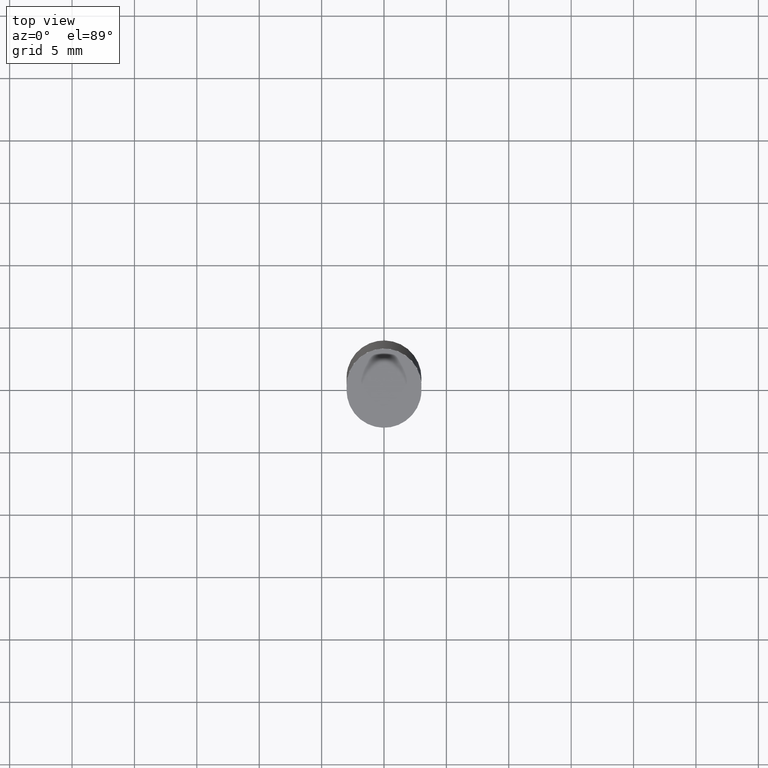
[diagram: clean part render]
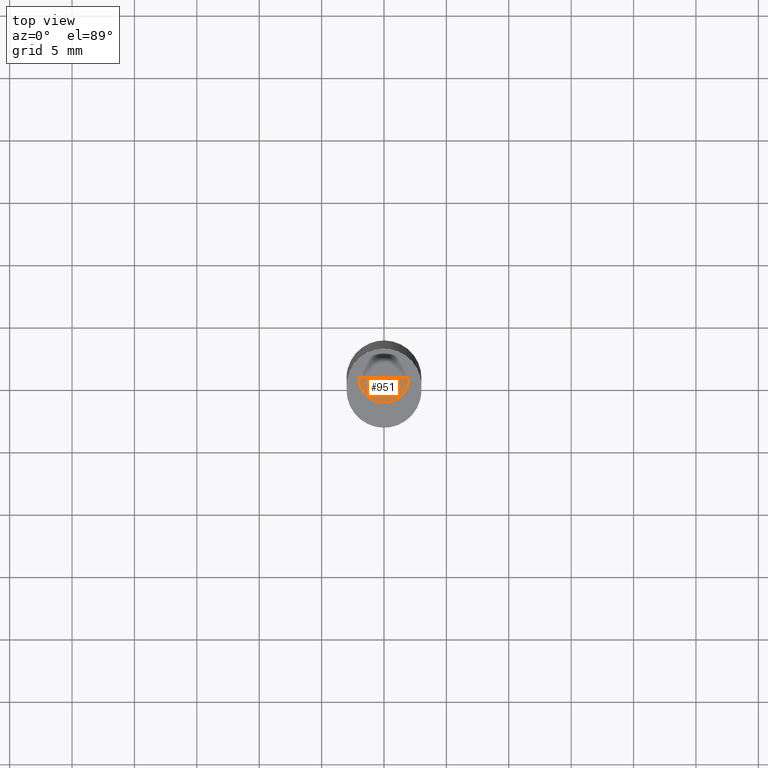
[diagram: same view with one face highlighted and labeled with its STEP entity id]
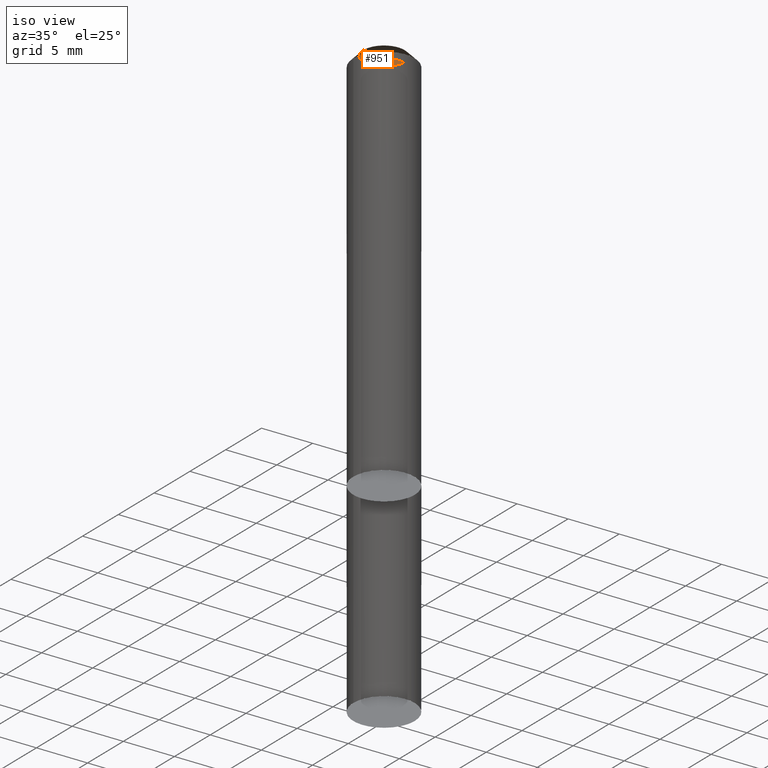
[diagram: same view with one face highlighted and labeled with its STEP entity id]
A machine part, top view. The second image highlights one B-rep face of the part: STEP entity #951.
A second angle (iso view) of the same face is appended — the face is thin or edge-on in the first view.
In plain terms, the highlighted face is a freeform B-spline surface patch.
Its self-contained STEP definition (entity closure, byte-faithful):
#683=CARTESIAN_POINT('',(2.0,0.0,38.0));
#687=CARTESIAN_POINT('',(-2.0,0.0,38.0));
#688=CARTESIAN_POINT('',(0.0,0.0,38.0));
#692=CARTESIAN_POINT('',(-2.0,-2.0,38.0));
#693=CARTESIAN_POINT('',(0.0,-2.0,38.0));
#694=CARTESIAN_POINT('',(2.0,-2.0,38.0));
#936=(
BOUNDED_SURFACE()
B_SPLINE_SURFACE(1,2,(
(#687,#692,#693,#694,#683),
(#688,#688,#688,#688,#688)
), .UNSPECIFIED.,.F.,.F.,.F.)
B_SPLINE_SURFACE_WITH_KNOTS((2,2),(3,2,3),(
0.0,1.0),(
0.0,0.5,1.0), .UNSPECIFIED.)
GEOMETRIC_REPRESENTATION_ITEM()
RATIONAL_B_SPLINE_SURFACE(((1.0,0.707106781187,1.0,0.707106781187,1.0),
(1.0,0.707106781187,1.0,0.707106781187,1.0)
))
REPRESENTATION_ITEM('')
SURFACE()
);
#937=(
BOUNDED_CURVE()
B_SPLINE_CURVE(2,(#683,#694,#693,#692,#687),.UNSPECIFIED.,.F.,.F.)
B_SPLINE_CURVE_WITH_KNOTS((3,2,3),
(0.0,0.5,1.0),.UNSPECIFIED.)
CURVE()
GEOMETRIC_REPRESENTATION_ITEM()
RATIONAL_B_SPLINE_CURVE((1.0,0.707106781187,1.0,0.707106781187,1.0))
REPRESENTATION_ITEM('')
);
#938=(
BOUNDED_CURVE()
B_SPLINE_CURVE(1,(#687,#688),.UNSPECIFIED.,.F.,.F.)
B_SPLINE_CURVE_WITH_KNOTS((2,2),
(0.0,1.0),.UNSPECIFIED.)
CURVE()
GEOMETRIC_REPRESENTATION_ITEM()
RATIONAL_B_SPLINE_CURVE((1.0,1.0))
REPRESENTATION_ITEM('')
);
#939=(
BOUNDED_CURVE()
B_SPLINE_CURVE(1,(#688,#683),.UNSPECIFIED.,.F.,.F.)
B_SPLINE_CURVE_WITH_KNOTS((2,2),
(0.0,1.0),.UNSPECIFIED.)
CURVE()
GEOMETRIC_REPRESENTATION_ITEM()
RATIONAL_B_SPLINE_CURVE((1.0,1.0))
REPRESENTATION_ITEM('')
);
#940=VERTEX_POINT('',#683);
#941=VERTEX_POINT('',#687);
#942=VERTEX_POINT('',#688);
#943=EDGE_CURVE('',#940,#941,#937,.T.);
#944=EDGE_CURVE('',#941,#942,#938,.T.);
#945=EDGE_CURVE('',#942,#940,#939,.T.);
#946=ORIENTED_EDGE('',*,*,#943,.T.);
#947=ORIENTED_EDGE('',*,*,#944,.T.);
#948=ORIENTED_EDGE('',*,*,#945,.T.);
#949=EDGE_LOOP('',(#946,#947,#948));
#950=FACE_OUTER_BOUND('',#949,.T.);
#951=ADVANCED_FACE('',(#950),#936,.T.);